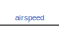
[diagram: root canvas - part 1/5, top center region]
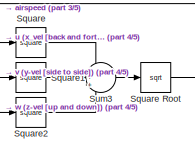
[diagram: root canvas - part 2/5, top center region]
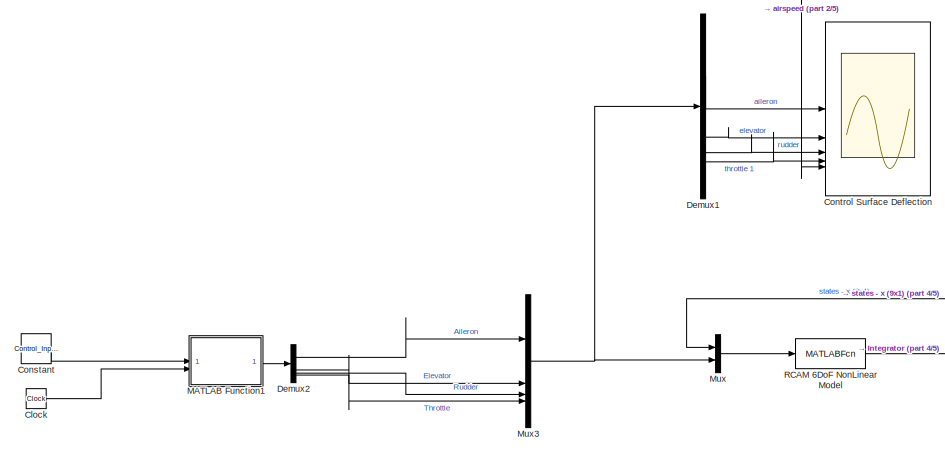
[diagram: root canvas - part 3/5, top left region]
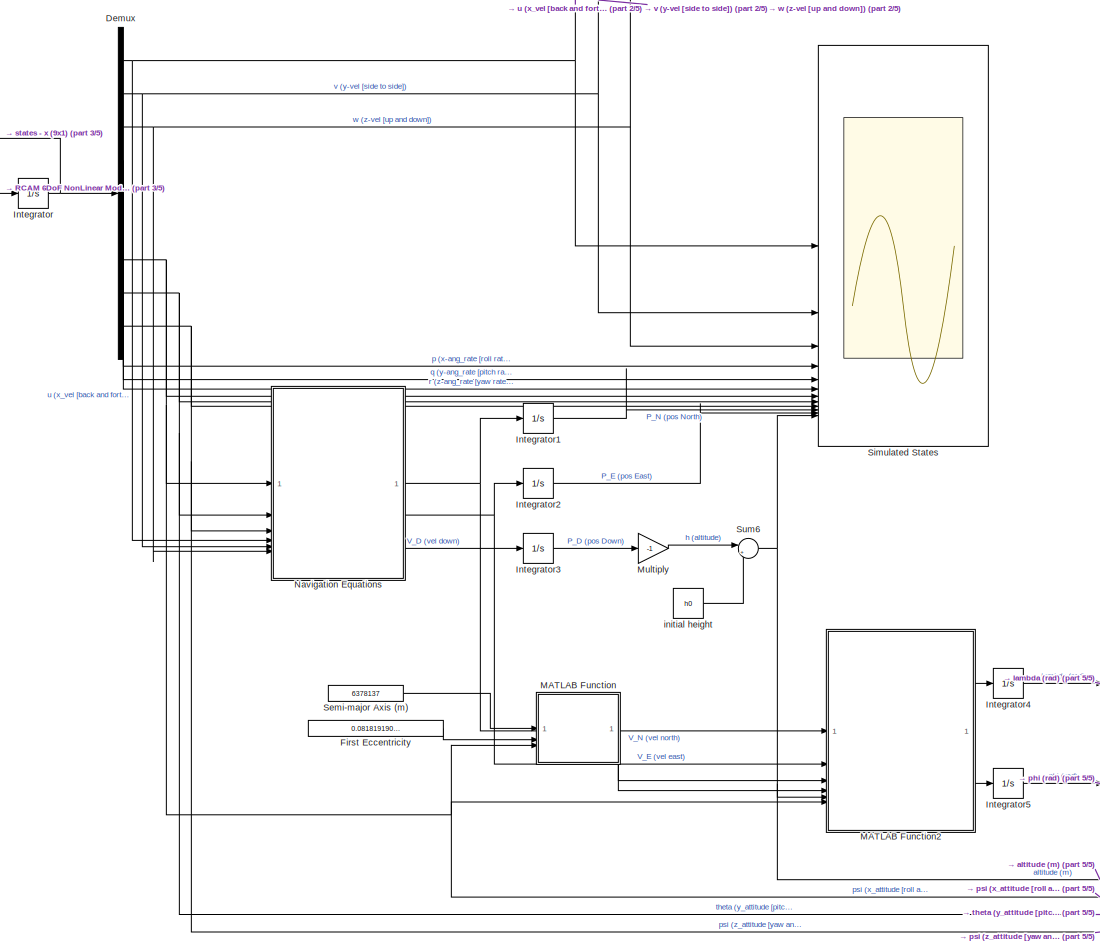
[diagram: root canvas - part 4/5, central region]
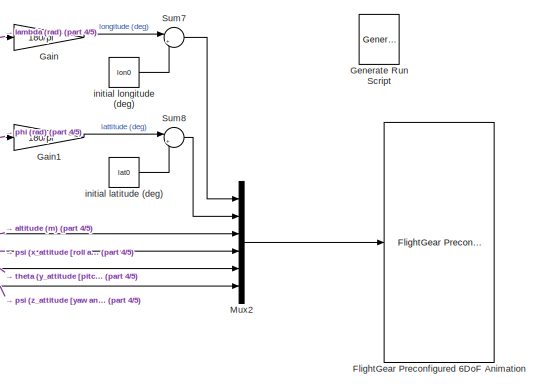
[diagram: root canvas - part 5/5, bottom right region]
MODEL slx_82ba8bf3a51c
KIND model
CONFIG AbsTol = auto
CONFIG EnableMultiTasking = off
CONFIG FixedStep = 0.0001
CONFIG MaxStep = auto
CONFIG MinStep = auto
CONFIG RelTol = 1e-3
CONFIG SampleTimeConstraint = Unconstrained
CONFIG SolverName = VariableStepAuto
CONFIG StartTime = 0.0
CONFIG StopTime = max(servotime)
BLOCK [Clock] Clock
BLOCK [Constant] Constant
  Value = Control_Input
BLOCK [Scope] Control Surface Deflection
  Floating = off
  NumInputPorts = 5
  ScopeSpecificationString = Simulink.scopes.TimeScopeBlockCfg('CurrentConfiguration', extmgr.ConfigurationSet(extmgr.Configuration('Core','General UI',true),extmgr.Configuration('Core','Source UI',true),extmgr.Configuration('Sources','WiredSimulink',true),extmgr.Configuration('Visuals','Time Domain',true,'SerializedDisplays',{struct('MinYLimReal','0.9','MaxYLimReal','1.1','YLabelReal','','MinYLimMag','0.9','MaxYLimMag','1.1'...<+5297ch>
BLOCK [Demux] Demux
  Outputs = 9
BLOCK [Demux] Demux1
BLOCK [Demux] Demux2
BLOCK [Constant] First Eccentricity
  Value = 0.081819190842622
BLOCK [Reference] FlightGear Preconfigured 6DoF Animation  REF=aerolibfltsims/FlightGear
Preconfigured
6DoF Animation
  SourceBlock = aerolibfltsims/FlightGear\nPreconfigured\n6DoF Animation
  SourceType = FlightGearQuick6DoFAnimation
BLOCK [Gain] Gain
  Gain = 180/pi
BLOCK [Gain] Gain1
  Gain = 180/pi
BLOCK [Reference] Generate Run Script  REF=aerolibfltsims/Generate
Run Script
  SourceBlock = aerolibfltsims/Generate\nRun Script
  SourceType = Generate FlightGear Run Script
BLOCK [Integrator] Integrator
  InitialCondition = x0
BLOCK [Integrator] Integrator1
BLOCK [Integrator] Integrator2
BLOCK [Integrator] Integrator3
BLOCK [Integrator] Integrator4
BLOCK [Integrator] Integrator5
  LowerSaturationLimit = -pi
  UpperSaturationLimit = pi
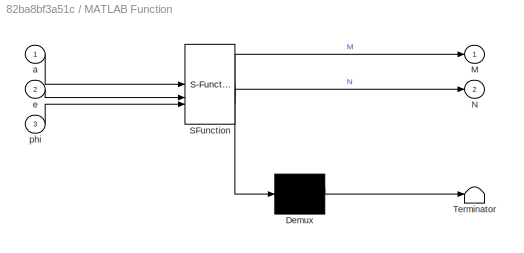
BLOCK [SubSystem] MATLAB Function
  ErrorFcn = Stateflow.Translate.translate
  PermitHierarchicalResolution = ExplicitOnly
  SFBlockType = MATLAB Function
  TreatAsAtomicUnit = on
BLOCK [Demux] MATLAB Function/ Demux 
  Outputs = 1
BLOCK [S-Function] MATLAB Function/ SFunction 
  EnableBusSupport = on
  FunctionName = sf_sfun
  PortCounts = [3 3]
  SFcnIsStateOwnerBlock = off
  SFunctionDeploymentMode = off
  Tag = Stateflow S-Function 1
BLOCK [Terminator] MATLAB Function/ Terminator 
BLOCK [Outport] MATLAB Function/M
BLOCK [Outport] MATLAB Function/N
  Port = 2
BLOCK [Inport] MATLAB Function/a
BLOCK [Inport] MATLAB Function/e
  Port = 2
BLOCK [Inport] MATLAB Function/phi
  Port = 3
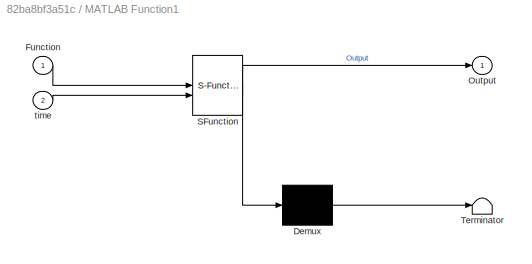
BLOCK [SubSystem] MATLAB Function1
  ErrorFcn = Stateflow.Translate.translate
  PermitHierarchicalResolution = ExplicitOnly
  SFBlockType = MATLAB Function
  TreatAsAtomicUnit = on
BLOCK [Demux] MATLAB Function1/ Demux 
  Outputs = 1
BLOCK [S-Function] MATLAB Function1/ SFunction 
  EnableBusSupport = on
  FunctionName = sf_sfun
  PortCounts = [2 2]
  SFcnIsStateOwnerBlock = off
  SFunctionDeploymentMode = off
  Tag = Stateflow S-Function 3
BLOCK [Terminator] MATLAB Function1/ Terminator 
BLOCK [Inport] MATLAB Function1/Function
BLOCK [Outport] MATLAB Function1/Output
BLOCK [Inport] MATLAB Function1/time
  Port = 2
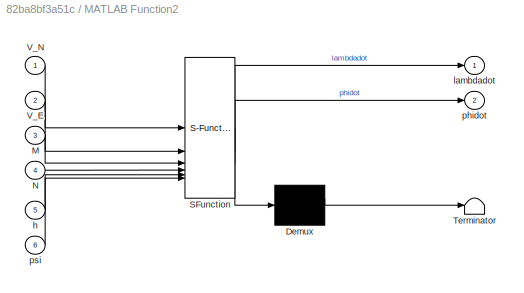
BLOCK [SubSystem] MATLAB Function2
  ErrorFcn = Stateflow.Translate.translate
  PermitHierarchicalResolution = ExplicitOnly
  SFBlockType = MATLAB Function
  TreatAsAtomicUnit = on
BLOCK [Demux] MATLAB Function2/ Demux 
  Outputs = 1
BLOCK [S-Function] MATLAB Function2/ SFunction 
  EnableBusSupport = on
  FunctionName = sf_sfun
  PortCounts = [6 3]
  SFcnIsStateOwnerBlock = off
  SFunctionDeploymentMode = off
  Tag = Stateflow S-Function 4
BLOCK [Terminator] MATLAB Function2/ Terminator 
BLOCK [Inport] MATLAB Function2/M
  Port = 3
BLOCK [Inport] MATLAB Function2/N
  Port = 4
BLOCK [Inport] MATLAB Function2/V_E
  Port = 2
BLOCK [Inport] MATLAB Function2/V_N
BLOCK [Inport] MATLAB Function2/h
  Port = 5
BLOCK [Outport] MATLAB Function2/lambdadot
BLOCK [Outport] MATLAB Function2/phidot
  Port = 2
BLOCK [Inport] MATLAB Function2/psi
  Port = 6
BLOCK [Gain] Multiply
  Gain = -1
BLOCK [Mux] Mux
  DisplayOption = bar
  Inputs = 2
BLOCK [Mux] Mux2
  DisplayOption = bar
  Inputs = 6
BLOCK [Mux] Mux3
  DisplayOption = bar
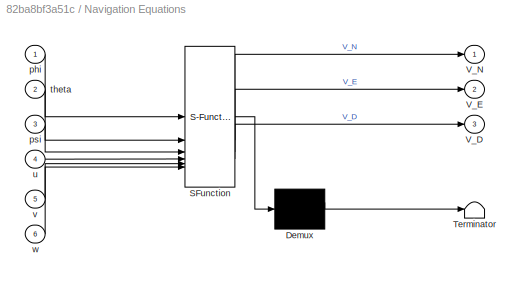
BLOCK [SubSystem] Navigation Equations
  ErrorFcn = Stateflow.Translate.translate
  PermitHierarchicalResolution = ExplicitOnly
  SFBlockType = MATLAB Function
  TreatAsAtomicUnit = on
BLOCK [Demux] Navigation Equations/ Demux 
  Outputs = 1
BLOCK [S-Function] Navigation Equations/ SFunction 
  EnableBusSupport = on
  FunctionName = sf_sfun
  PortCounts = [6 4]
  SFcnIsStateOwnerBlock = off
  SFunctionDeploymentMode = off
  Tag = Stateflow S-Function 2
BLOCK [Terminator] Navigation Equations/ Terminator 
BLOCK [Outport] Navigation Equations/V_D
  Port = 3
BLOCK [Outport] Navigation Equations/V_E
  Port = 2
BLOCK [Outport] Navigation Equations/V_N
BLOCK [Inport] Navigation Equations/phi
BLOCK [Inport] Navigation Equations/psi
  Port = 3
BLOCK [Inport] Navigation Equations/theta
  Port = 2
BLOCK [Inport] Navigation Equations/u
  Port = 4
BLOCK [Inport] Navigation Equations/v
  Port = 5
BLOCK [Inport] Navigation Equations/w
  Port = 6
BLOCK [MATLABFcn] RCAM 6DoF NonLinear Model
  MATLABFcn = RCAM_model_openVSP(u(1:9), u(10:13))
BLOCK [Constant] Semi-major Axis (m)
  Value = 6378137
BLOCK [Scope] Simulated States
  Floating = off
  NumInputPorts = 12
  ScopeSpecificationString = Simulink.scopes.TimeScopeBlockCfg('CurrentConfiguration', extmgr.ConfigurationSet(extmgr.Configuration('Core','General UI',true),extmgr.Configuration('Core','Source UI',true),extmgr.Configuration('Sources','WiredSimulink',true,'DataLoggingVariableName','ScopeData1'),extmgr.Configuration('Visuals','Time Domain',true,'SerializedDisplays',{struct('MinYLimReal','65.25754','MaxYLimReal','97.9064','YLab...<+10367ch>
BLOCK [Math] Square
  Operator = square
BLOCK [Sqrt] Square Root
BLOCK [Math] Square1
  Operator = square
BLOCK [Math] Square2
  Operator = square
BLOCK [Sum] Sum3
  Inputs = +++
BLOCK [Sum] Sum6
  Inputs = |++
BLOCK [Sum] Sum7
  Inputs = |++
BLOCK [Sum] Sum8
  Inputs = |++
BLOCK [Constant] initial height
  Value = h0
BLOCK [Constant] initial latitude (deg)
  Value = lat0
BLOCK [Constant] initial longitude (deg)
  Value = lon0
LINE Clock:1 -> MATLAB Function1:2
LINE Constant:1 -> MATLAB Function1:1
LINE Demux1:1 -> Control Surface Deflection:1
LINE Demux1:2 -> Control Surface Deflection:2
LINE Demux1:3 -> Control Surface Deflection:3
LINE Demux1:4 -> Control Surface Deflection:4
LINE Demux2:1 -> Mux3:1
LINE Demux2:2 -> Mux3:2
LINE Demux2:3 -> Mux3:3
LINE Demux2:4 -> Mux3:4
NET Demux:1 -> Navigation Equations:4, Simulated States:1, Square:1
NET Demux:2 -> Navigation Equations:5, Simulated States:2, Square1:1
NET Demux:3 -> Navigation Equations:6, Simulated States:3, Square2:1
LINE Demux:4 -> Simulated States:4
LINE Demux:5 -> Simulated States:5
LINE Demux:6 -> Simulated States:6
NET Demux:7 -> MATLAB Function2:6, MATLAB Function:3, Mux2:4, Navigation Equations:1, Simulated States:7
NET Demux:8 -> Mux2:5, Navigation Equations:2, Simulated States:8
NET Demux:9 -> Mux2:6, Navigation Equations:3, Simulated States:9
LINE First Eccentricity:1 -> MATLAB Function:2
LINE Gain1:1 -> Sum8:1
LINE Gain:1 -> Sum7:1
LINE Integrator1:1 -> Simulated States:10
LINE Integrator2:1 -> Simulated States:11
LINE Integrator3:1 -> Multiply:1
LINE Integrator4:1 -> Gain:1
LINE Integrator5:1 -> Gain1:1
NET Integrator:1 -> Demux:1, Mux:1
LINE MATLAB Function1:1 -> Demux2:1
LINE MATLAB Function2:1 -> Integrator4:1
LINE MATLAB Function2:2 -> Integrator5:1
LINE MATLAB Function:1 -> MATLAB Function2:3
LINE MATLAB Function:2 -> MATLAB Function2:4
LINE Multiply:1 -> Sum6:1
LINE Mux2:1 -> FlightGear Preconfigured 6DoF Animation:1
NET Mux3:1 -> Demux1:1, Mux:2
LINE Mux:1 -> RCAM 6DoF NonLinear Model:1
NET Navigation Equations:1 -> Integrator1:1, MATLAB Function2:1
NET Navigation Equations:2 -> Integrator2:1, MATLAB Function2:2
LINE Navigation Equations:3 -> Integrator3:1
LINE RCAM 6DoF NonLinear Model:1 -> Integrator:1
LINE Semi-major Axis (m):1 -> MATLAB Function:1
LINE Square Root:1 -> Control Surface Deflection:5
LINE Square1:1 -> Sum3:2
LINE Square2:1 -> Sum3:3
LINE Square:1 -> Sum3:1
LINE Sum3:1 -> Square Root:1
NET Sum6:1 -> MATLAB Function2:5, Mux2:3, Simulated States:12
LINE Sum7:1 -> Mux2:1
LINE Sum8:1 -> Mux2:2
LINE initial height:1 -> Sum6:2
LINE initial latitude (deg):1 -> Sum8:2
LINE initial longitude (deg):1 -> Sum7:2
note: NET lines group one-source signal fan-out (src -> all destinations, sorted); 1:1 wires keep LINE
CHART MATLAB Function states=1 transitions=1
  STATE_LABEL 'eML_blk_kernel()'
  STATE_LABEL 'SCRIPT:\nfunction [M, N] = calculate_mn (a, e, phi)\n\nM = a*(1-e^2)/(1-(e^2)*sin(phi)^2)^1.5;\n\nN = a/(1-(e^2)*sin(phi)^2)^0.5;\n\nend\n'
CHART Navigation Equations states=1 transitions=1
  STATE_LABEL 'eML_blk_kernel()'
  STATE_LABEL "SCRIPT:\nfunction [V_N, V_E, V_D] = navigation_equation(phi, theta, psi, u, v, w)\n\nx7 = phi;\nx8 = theta;\nx9 = psi;\nx1 = u;\nx2 = v;\nx3 = w;\n\nV_b = [x1; x2; x3];\n\n%navigation equations\nC1v = [cos(x9) sin(x9) 0; -sin(x9) cos(x9) 0; 0 0 1];\n\nC21 = [cos(x8) 0 -sin(x8); 0 1 0; sin(x8) 0 cos(x8)];\n\nCb2 = [1 0 0; 0 cos(x7) sin(x7); 0 -sin(x7) cos(x7)];\n\nCvb = Cb2*C21*C1v;\nCvb = Cvb';\n\nvel_vector = Cvb*V_b;...<+69ch>"
CHART MATLAB Function1 states=1 transitions=1
  STATE_LABEL 'eML_blk_kernel()'
  STATE_LABEL "SCRIPT:\nfunction Output = fcn(Function,time)\n\ny = interp1(Function(:,1),Function(:,2:end),time);\ny = double(y);\nOutput = y';"
CHART MATLAB Function2 states=1 transitions=1
  STATE_LABEL 'eML_blk_kernel()'
  STATE_LABEL 'SCRIPT:\nfunction [lambdadot, phidot] = calculate_phi_lambdadot(V_N, V_E, M, N, h, psi)\n\nlambdadot = V_E/(N+h)*cos(psi);\nphidot = V_N/(M+h);\n\n\nend'
CHART  states=0 transitions=0
CHART  states=0 transitions=0
CHART  states=0 transitions=0
CHART  states=0 transitions=0
